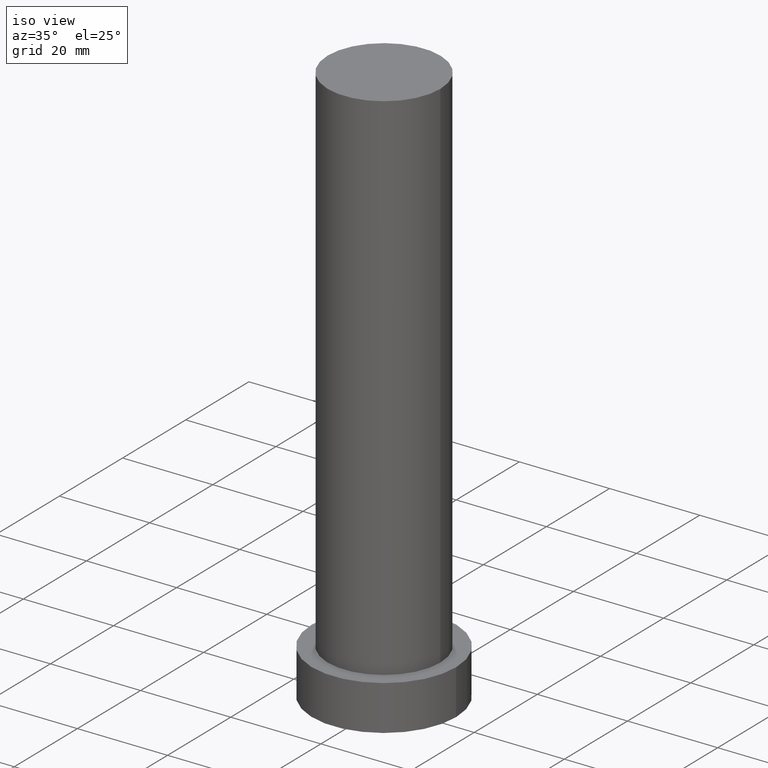
[diagram: clean part render]
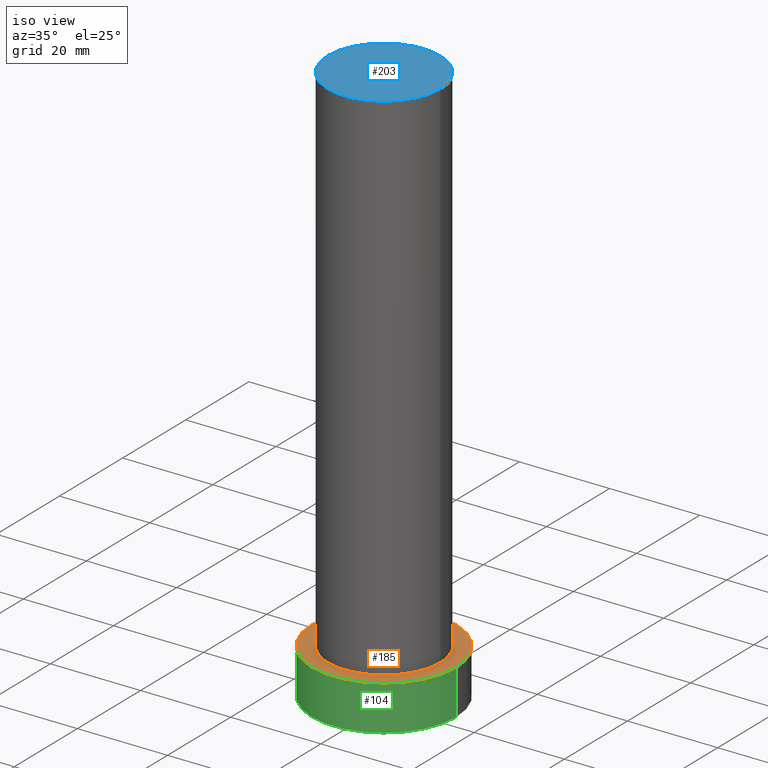
[diagram: same view with three faces highlighted in distinct colors, each labeled with its STEP entity id]
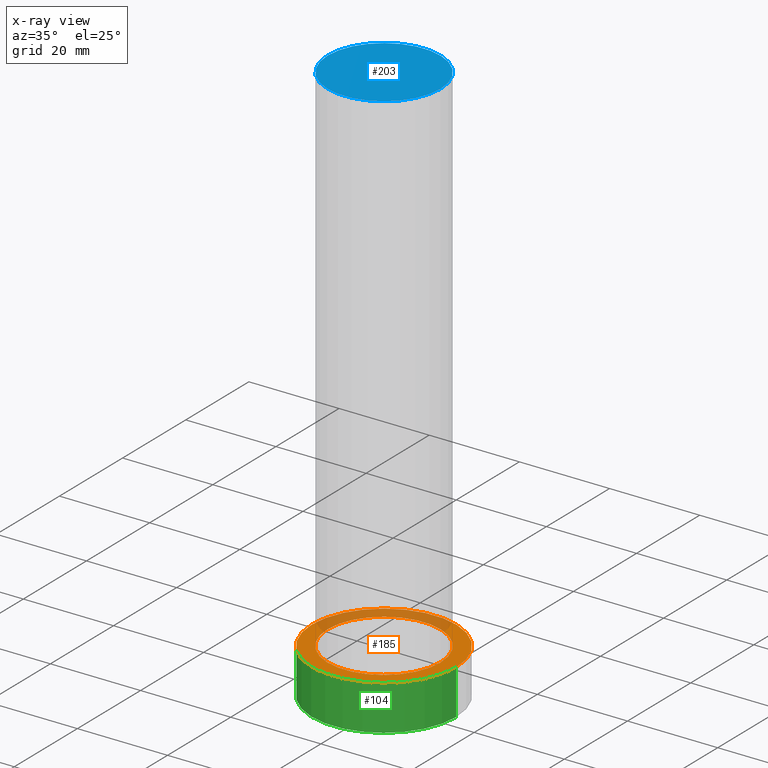
[diagram: x-ray of the same camera — body ghosted, the three highlighted faces saturated]
A machine part, iso view with three faces highlighted in distinct colors.
The next image is the same camera in x-ray (body ghosted, the three faces saturated) — at least one of them is partly hidden behind the body in this view.
Their STEP definitions:

[orange] entity #185 — the highlighted planar face has unit normal (0, 0, 1).
#9 = DIRECTION ( 'NONE',  ( 1.000000000000000000, 0.000000000000000000, 0.000000000000000000 ) ) ;
#13 = DIRECTION ( 'NONE',  ( 0.000000000000000000, 0.000000000000000000, 1.000000000000000000 ) ) ;
#18 = ORIENTED_EDGE ( 'NONE', *, *, #228, .T. ) ;
#20 = EDGE_LOOP ( 'NONE', ( #247, #122 ) ) ;
#21 = AXIS2_PLACEMENT_3D ( 'NONE', #74, #210, #96 ) ;
#23 = CARTESIAN_POINT ( 'NONE',  ( 12.50000000000000000, 1.530808498934191521E-15, 10.00000000000000000 ) ) ;
#26 = DIRECTION ( 'NONE',  ( 1.000000000000000000, 0.000000000000000000, -0.000000000000000000 ) ) ;
#29 = CARTESIAN_POINT ( 'NONE',  ( 16.00000000000000000, 1.959434878635765131E-15, 10.00000000000000000 ) ) ;
#35 = ORIENTED_EDGE ( 'NONE', *, *, #253, .T. ) ;
#51 = DIRECTION ( 'NONE',  ( 0.000000000000000000, 0.000000000000000000, 1.000000000000000000 ) ) ;
#65 = CIRCLE ( 'NONE', #21, 16.00000000000000000 ) ;
#72 = DIRECTION ( 'NONE',  ( 1.000000000000000000, 0.000000000000000000, 0.000000000000000000 ) ) ;
#74 = CARTESIAN_POINT ( 'NONE',  ( 0.000000000000000000, 0.000000000000000000, 10.00000000000000000 ) ) ;
#75 = EDGE_CURVE ( 'NONE', #95, #198, #170, .T. ) ;
#86 = CARTESIAN_POINT ( 'NONE',  ( -16.00000000000000000, 0.000000000000000000, 10.00000000000000000 ) ) ;
#89 = CARTESIAN_POINT ( 'NONE',  ( 0.000000000000000000, 0.000000000000000000, 10.00000000000000000 ) ) ;
#92 = VERTEX_POINT ( 'NONE', #29 ) ;
#94 = AXIS2_PLACEMENT_3D ( 'NONE', #224, #160, #72 ) ;
#95 = VERTEX_POINT ( 'NONE', #23 ) ;
#96 = DIRECTION ( 'NONE',  ( 1.000000000000000000, 0.000000000000000000, 0.000000000000000000 ) ) ;
#114 = CIRCLE ( 'NONE', #143, 12.50000000000000000 ) ;
#115 = VERTEX_POINT ( 'NONE', #86 ) ;
#122 = ORIENTED_EDGE ( 'NONE', *, *, #75, .F. ) ;
#136 = CARTESIAN_POINT ( 'NONE',  ( 0.000000000000000000, 0.000000000000000000, 10.00000000000000000 ) ) ;
#140 = CARTESIAN_POINT ( 'NONE',  ( 0.000000000000000000, 0.000000000000000000, 10.00000000000000000 ) ) ;
#143 = AXIS2_PLACEMENT_3D ( 'NONE', #89, #51, #9 ) ;
#158 = CIRCLE ( 'NONE', #175, 16.00000000000000000 ) ;
#160 = DIRECTION ( 'NONE',  ( 0.000000000000000000, 0.000000000000000000, 1.000000000000000000 ) ) ;
#163 = EDGE_CURVE ( 'NONE', #198, #95, #114, .T. ) ;
#165 = CARTESIAN_POINT ( 'NONE',  ( -12.50000000000000000, 0.000000000000000000, 10.00000000000000000 ) ) ;
#170 = CIRCLE ( 'NONE', #94, 12.50000000000000000 ) ;
#174 = FACE_BOUND ( 'NONE', #20, .T. ) ;
#175 = AXIS2_PLACEMENT_3D ( 'NONE', #140, #13, #209 ) ;
#185 = ADVANCED_FACE ( 'NONE', ( #174, #245 ), #190, .T. ) ;
#190 = PLANE ( 'NONE',  #255 ) ;
#198 = VERTEX_POINT ( 'NONE', #165 ) ;
#208 = DIRECTION ( 'NONE',  ( 0.000000000000000000, 0.000000000000000000, 1.000000000000000000 ) ) ;
#209 = DIRECTION ( 'NONE',  ( 1.000000000000000000, 0.000000000000000000, 0.000000000000000000 ) ) ;
#210 = DIRECTION ( 'NONE',  ( 0.000000000000000000, 0.000000000000000000, 1.000000000000000000 ) ) ;
#211 = EDGE_LOOP ( 'NONE', ( #35, #18 ) ) ;
#224 = CARTESIAN_POINT ( 'NONE',  ( 0.000000000000000000, 0.000000000000000000, 10.00000000000000000 ) ) ;
#228 = EDGE_CURVE ( 'NONE', #92, #115, #158, .T. ) ;
#245 = FACE_OUTER_BOUND ( 'NONE', #211, .T. ) ;
#247 = ORIENTED_EDGE ( 'NONE', *, *, #163, .F. ) ;
#253 = EDGE_CURVE ( 'NONE', #115, #92, #65, .T. ) ;
#255 = AXIS2_PLACEMENT_3D ( 'NONE', #136, #208, #26 ) ;

[blue] entity #203 — the highlighted planar face has unit normal (0, 0, 1).
#14 = AXIS2_PLACEMENT_3D ( 'NONE', #46, #71, #68 ) ;
#17 = DIRECTION ( 'NONE',  ( 0.000000000000000000, 0.000000000000000000, 1.000000000000000000 ) ) ;
#32 = AXIS2_PLACEMENT_3D ( 'NONE', #223, #188, #50 ) ;
#33 = PLANE ( 'NONE',  #181 ) ;
#46 = CARTESIAN_POINT ( 'NONE',  ( 0.000000000000000000, 0.000000000000000000, 125.0000000000000000 ) ) ;
#50 = DIRECTION ( 'NONE',  ( 1.000000000000000000, 0.000000000000000000, 0.000000000000000000 ) ) ;
#53 = EDGE_CURVE ( 'NONE', #251, #101, #177, .T. ) ;
#54 = ORIENTED_EDGE ( 'NONE', *, *, #57, .T. ) ;
#57 = EDGE_CURVE ( 'NONE', #101, #251, #151, .T. ) ;
#68 = DIRECTION ( 'NONE',  ( 1.000000000000000000, 0.000000000000000000, 0.000000000000000000 ) ) ;
#71 = DIRECTION ( 'NONE',  ( 0.000000000000000000, 0.000000000000000000, 1.000000000000000000 ) ) ;
#80 = EDGE_LOOP ( 'NONE', ( #54, #168 ) ) ;
#101 = VERTEX_POINT ( 'NONE', #159 ) ;
#112 = CARTESIAN_POINT ( 'NONE',  ( 0.000000000000000000, 0.000000000000000000, 125.0000000000000000 ) ) ;
#151 = CIRCLE ( 'NONE', #32, 12.50000000000000000 ) ;
#159 = CARTESIAN_POINT ( 'NONE',  ( -12.50000000000000000, 0.000000000000000000, 125.0000000000000000 ) ) ;
#168 = ORIENTED_EDGE ( 'NONE', *, *, #53, .T. ) ;
#177 = CIRCLE ( 'NONE', #14, 12.50000000000000000 ) ;
#181 = AXIS2_PLACEMENT_3D ( 'NONE', #112, #17, #195 ) ;
#188 = DIRECTION ( 'NONE',  ( 0.000000000000000000, 0.000000000000000000, 1.000000000000000000 ) ) ;
#195 = DIRECTION ( 'NONE',  ( 1.000000000000000000, 0.000000000000000000, -0.000000000000000000 ) ) ;
#203 = ADVANCED_FACE ( 'NONE', ( #234 ), #33, .T. ) ;
#223 = CARTESIAN_POINT ( 'NONE',  ( 0.000000000000000000, 0.000000000000000000, 125.0000000000000000 ) ) ;
#230 = CARTESIAN_POINT ( 'NONE',  ( 12.50000000000000000, 1.530808498934191521E-15, 125.0000000000000000 ) ) ;
#234 = FACE_OUTER_BOUND ( 'NONE', #80, .T. ) ;
#251 = VERTEX_POINT ( 'NONE', #230 ) ;

[green] entity #104 — the highlighted cylindrical surface (partial cylindrical patch) has radius 16 mm, axis along (-0, -0, -1).
#6 = CARTESIAN_POINT ( 'NONE',  ( 16.00000000000000000, 1.959434878635765131E-15, 0.000000000000000000 ) ) ;
#11 = CYLINDRICAL_SURFACE ( 'NONE', #132, 16.00000000000000000 ) ;
#12 = FACE_OUTER_BOUND ( 'NONE', #27, .T. ) ;
#15 = LINE ( 'NONE', #227, #153 ) ;
#21 = AXIS2_PLACEMENT_3D ( 'NONE', #74, #210, #96 ) ;
#27 = EDGE_LOOP ( 'NONE', ( #76, #60, #196, #146 ) ) ;
#29 = CARTESIAN_POINT ( 'NONE',  ( 16.00000000000000000, 1.959434878635765131E-15, 10.00000000000000000 ) ) ;
#34 = CIRCLE ( 'NONE', #138, 16.00000000000000000 ) ;
#39 = VERTEX_POINT ( 'NONE', #187 ) ;
#48 = VECTOR ( 'NONE', #243, 1000.000000000000000 ) ;
#49 = CARTESIAN_POINT ( 'NONE',  ( 0.000000000000000000, 0.000000000000000000, 10.00000000000000000 ) ) ;
#59 = VERTEX_POINT ( 'NONE', #6 ) ;
#60 = ORIENTED_EDGE ( 'NONE', *, *, #253, .F. ) ;
#65 = CIRCLE ( 'NONE', #21, 16.00000000000000000 ) ;
#74 = CARTESIAN_POINT ( 'NONE',  ( 0.000000000000000000, 0.000000000000000000, 10.00000000000000000 ) ) ;
#76 = ORIENTED_EDGE ( 'NONE', *, *, #171, .F. ) ;
#86 = CARTESIAN_POINT ( 'NONE',  ( -16.00000000000000000, 0.000000000000000000, 10.00000000000000000 ) ) ;
#92 = VERTEX_POINT ( 'NONE', #29 ) ;
#96 = DIRECTION ( 'NONE',  ( 1.000000000000000000, 0.000000000000000000, 0.000000000000000000 ) ) ;
#104 = ADVANCED_FACE ( 'NONE', ( #12 ), #11, .T. ) ;
#108 = LINE ( 'NONE', #133, #48 ) ;
#115 = VERTEX_POINT ( 'NONE', #86 ) ;
#117 = DIRECTION ( 'NONE',  ( 0.000000000000000000, 0.000000000000000000, 1.000000000000000000 ) ) ;
#131 = DIRECTION ( 'NONE',  ( -0.000000000000000000, -0.000000000000000000, -1.000000000000000000 ) ) ;
#132 = AXIS2_PLACEMENT_3D ( 'NONE', #49, #131, #204 ) ;
#133 = CARTESIAN_POINT ( 'NONE',  ( 16.00000000000000000, 1.959434878635765131E-15, 10.00000000000000000 ) ) ;
#138 = AXIS2_PLACEMENT_3D ( 'NONE', #173, #117, #162 ) ;
#146 = ORIENTED_EDGE ( 'NONE', *, *, #192, .T. ) ;
#153 = VECTOR ( 'NONE', #179, 1000.000000000000000 ) ;
#162 = DIRECTION ( 'NONE',  ( 1.000000000000000000, 0.000000000000000000, 0.000000000000000000 ) ) ;
#171 = EDGE_CURVE ( 'NONE', #92, #59, #108, .T. ) ;
#173 = CARTESIAN_POINT ( 'NONE',  ( 0.000000000000000000, 0.000000000000000000, 0.000000000000000000 ) ) ;
#179 = DIRECTION ( 'NONE',  ( -0.000000000000000000, -0.000000000000000000, -1.000000000000000000 ) ) ;
#187 = CARTESIAN_POINT ( 'NONE',  ( -16.00000000000000000, 0.000000000000000000, 0.000000000000000000 ) ) ;
#192 = EDGE_CURVE ( 'NONE', #39, #59, #34, .T. ) ;
#196 = ORIENTED_EDGE ( 'NONE', *, *, #237, .T. ) ;
#204 = DIRECTION ( 'NONE',  ( -1.000000000000000000, 0.000000000000000000, 0.000000000000000000 ) ) ;
#210 = DIRECTION ( 'NONE',  ( 0.000000000000000000, 0.000000000000000000, 1.000000000000000000 ) ) ;
#227 = CARTESIAN_POINT ( 'NONE',  ( -16.00000000000000000, 0.000000000000000000, 10.00000000000000000 ) ) ;
#237 = EDGE_CURVE ( 'NONE', #115, #39, #15, .T. ) ;
#243 = DIRECTION ( 'NONE',  ( -0.000000000000000000, -0.000000000000000000, -1.000000000000000000 ) ) ;
#253 = EDGE_CURVE ( 'NONE', #115, #92, #65, .T. ) ;